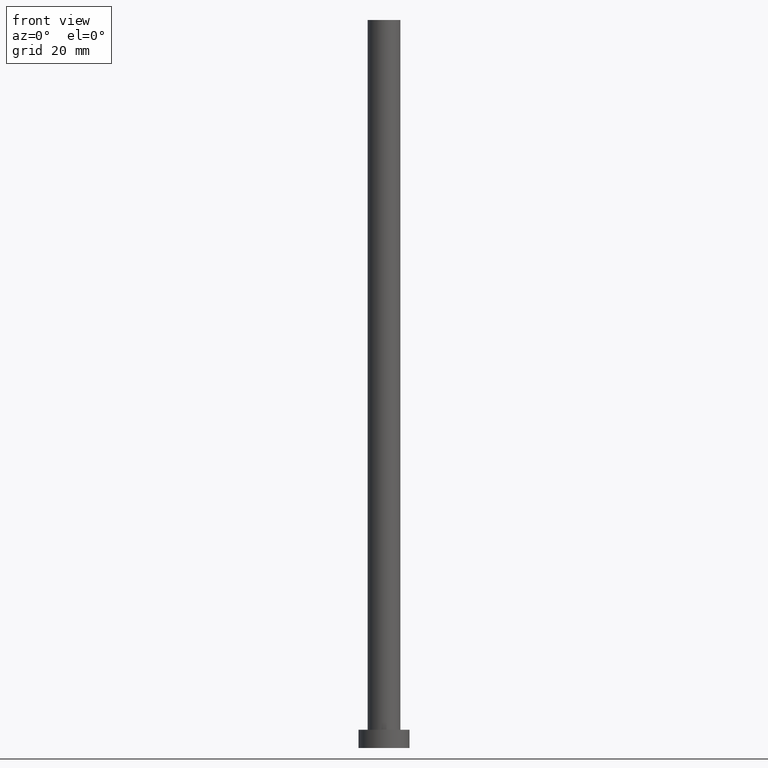
[diagram: clean part render]
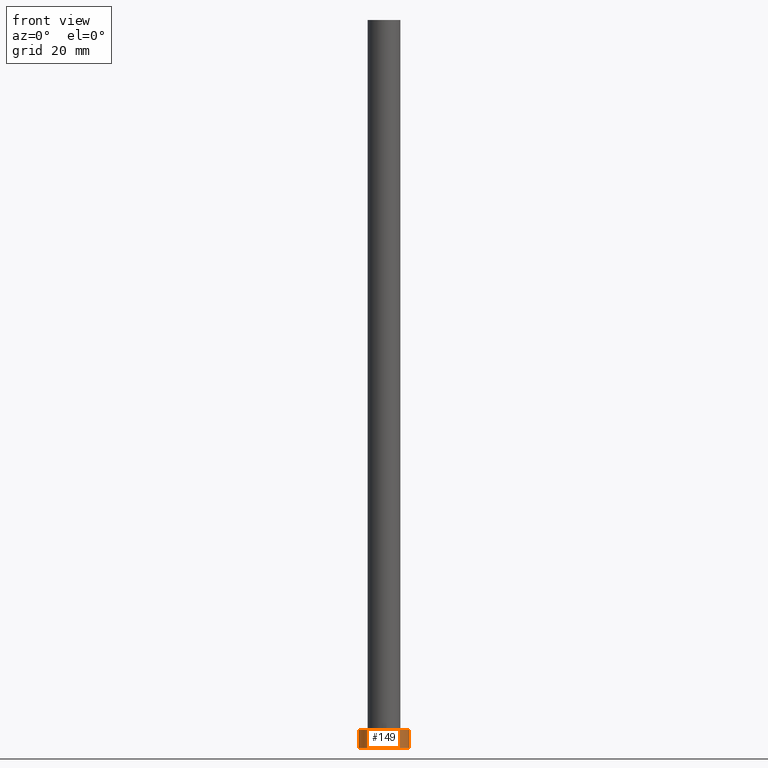
[diagram: same view with one face highlighted and labeled with its STEP entity id]
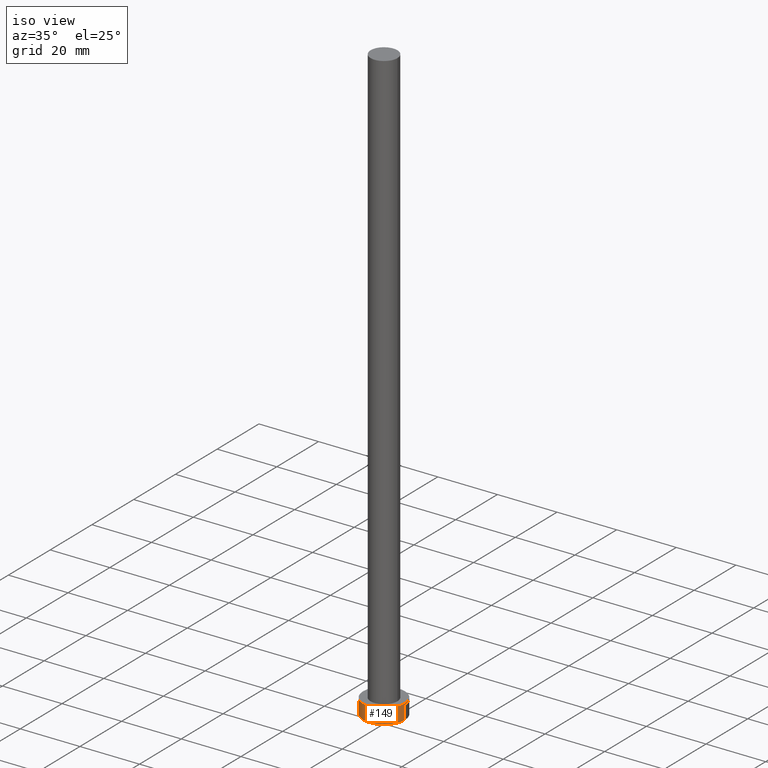
[diagram: same view with one face highlighted and labeled with its STEP entity id]
A machine part, front view. The second image highlights one B-rep face of the part: STEP entity #149.
A second angle (iso view) of the same face is appended — the face is thin or edge-on in the first view.
In plain terms, the highlighted cylindrical surface (edge-blend (fillet) strip) has radius 7 mm, axis along (-0, -0, -1).
Its self-contained STEP definition (entity closure, byte-faithful):
#17 = CARTESIAN_POINT ( 'NONE',  ( -7.000000000000000000, 0.000000000000000000, 0.000000000000000000 ) ) ;
#23 = CARTESIAN_POINT ( 'NONE',  ( 0.000000000000000000, 0.000000000000000000, 5.000000000000000000 ) ) ;
#26 = VERTEX_POINT ( 'NONE', #232 ) ;
#31 = VERTEX_POINT ( 'NONE', #17 ) ;
#33 = CIRCLE ( 'NONE', #96, 7.000000000000000000 ) ;
#36 = CARTESIAN_POINT ( 'NONE',  ( 7.000000000000000000, 8.572527594031473190E-16, 0.000000000000000000 ) ) ;
#37 = DIRECTION ( 'NONE',  ( -0.000000000000000000, -0.000000000000000000, -1.000000000000000000 ) ) ;
#43 = EDGE_CURVE ( 'NONE', #26, #76, #162, .T. ) ;
#55 = VERTEX_POINT ( 'NONE', #254 ) ;
#58 = CIRCLE ( 'NONE', #113, 7.000000000000000000 ) ;
#64 = DIRECTION ( 'NONE',  ( -0.000000000000000000, -0.000000000000000000, -1.000000000000000000 ) ) ;
#67 = EDGE_LOOP ( 'NONE', ( #92, #193, #219, #150 ) ) ;
#76 = VERTEX_POINT ( 'NONE', #36 ) ;
#92 = ORIENTED_EDGE ( 'NONE', *, *, #43, .F. ) ;
#96 = AXIS2_PLACEMENT_3D ( 'NONE', #222, #148, #239 ) ;
#109 = DIRECTION ( 'NONE',  ( -0.000000000000000000, -0.000000000000000000, -1.000000000000000000 ) ) ;
#113 = AXIS2_PLACEMENT_3D ( 'NONE', #165, #129, #190 ) ;
#127 = VECTOR ( 'NONE', #37, 1000.000000000000000 ) ;
#129 = DIRECTION ( 'NONE',  ( 0.000000000000000000, 0.000000000000000000, 1.000000000000000000 ) ) ;
#135 = EDGE_CURVE ( 'NONE', #55, #31, #169, .T. ) ;
#146 = DIRECTION ( 'NONE',  ( -1.000000000000000000, 0.000000000000000000, 0.000000000000000000 ) ) ;
#148 = DIRECTION ( 'NONE',  ( 0.000000000000000000, 0.000000000000000000, 1.000000000000000000 ) ) ;
#149 = ADVANCED_FACE ( 'NONE', ( #244 ), #241, .T. ) ;
#150 = ORIENTED_EDGE ( 'NONE', *, *, #198, .T. ) ;
#162 = LINE ( 'NONE', #220, #127 ) ;
#165 = CARTESIAN_POINT ( 'NONE',  ( 0.000000000000000000, 0.000000000000000000, 5.000000000000000000 ) ) ;
#169 = LINE ( 'NONE', #238, #250 ) ;
#182 = AXIS2_PLACEMENT_3D ( 'NONE', #23, #64, #146 ) ;
#190 = DIRECTION ( 'NONE',  ( 1.000000000000000000, 0.000000000000000000, 0.000000000000000000 ) ) ;
#193 = ORIENTED_EDGE ( 'NONE', *, *, #233, .F. ) ;
#198 = EDGE_CURVE ( 'NONE', #31, #76, #33, .T. ) ;
#219 = ORIENTED_EDGE ( 'NONE', *, *, #135, .T. ) ;
#220 = CARTESIAN_POINT ( 'NONE',  ( 7.000000000000000000, 8.572527594031473190E-16, 5.000000000000000000 ) ) ;
#222 = CARTESIAN_POINT ( 'NONE',  ( 0.000000000000000000, 0.000000000000000000, 0.000000000000000000 ) ) ;
#232 = CARTESIAN_POINT ( 'NONE',  ( 7.000000000000000000, 8.572527594031473190E-16, 5.000000000000000000 ) ) ;
#233 = EDGE_CURVE ( 'NONE', #55, #26, #58, .T. ) ;
#238 = CARTESIAN_POINT ( 'NONE',  ( -7.000000000000000000, 0.000000000000000000, 5.000000000000000000 ) ) ;
#239 = DIRECTION ( 'NONE',  ( 1.000000000000000000, 0.000000000000000000, 0.000000000000000000 ) ) ;
#241 = CYLINDRICAL_SURFACE ( 'NONE', #182, 7.000000000000000000 ) ;
#244 = FACE_OUTER_BOUND ( 'NONE', #67, .T. ) ;
#250 = VECTOR ( 'NONE', #109, 1000.000000000000000 ) ;
#254 = CARTESIAN_POINT ( 'NONE',  ( -7.000000000000000000, 0.000000000000000000, 5.000000000000000000 ) ) ;